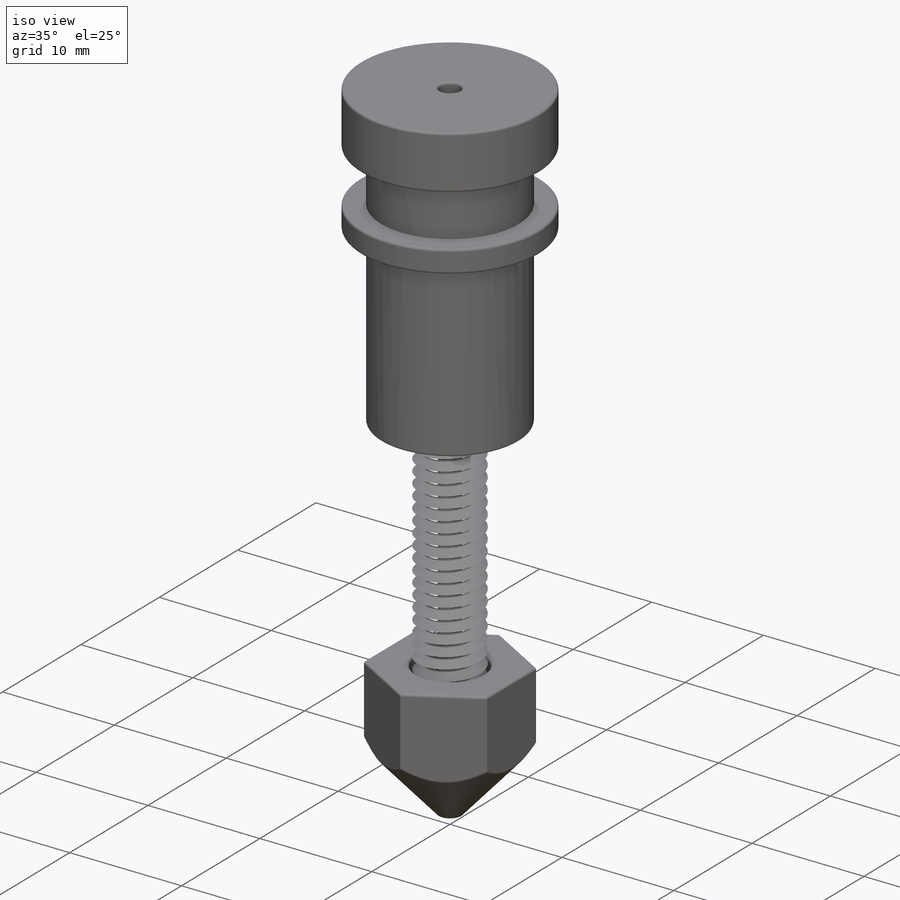
[diagram: iso view]
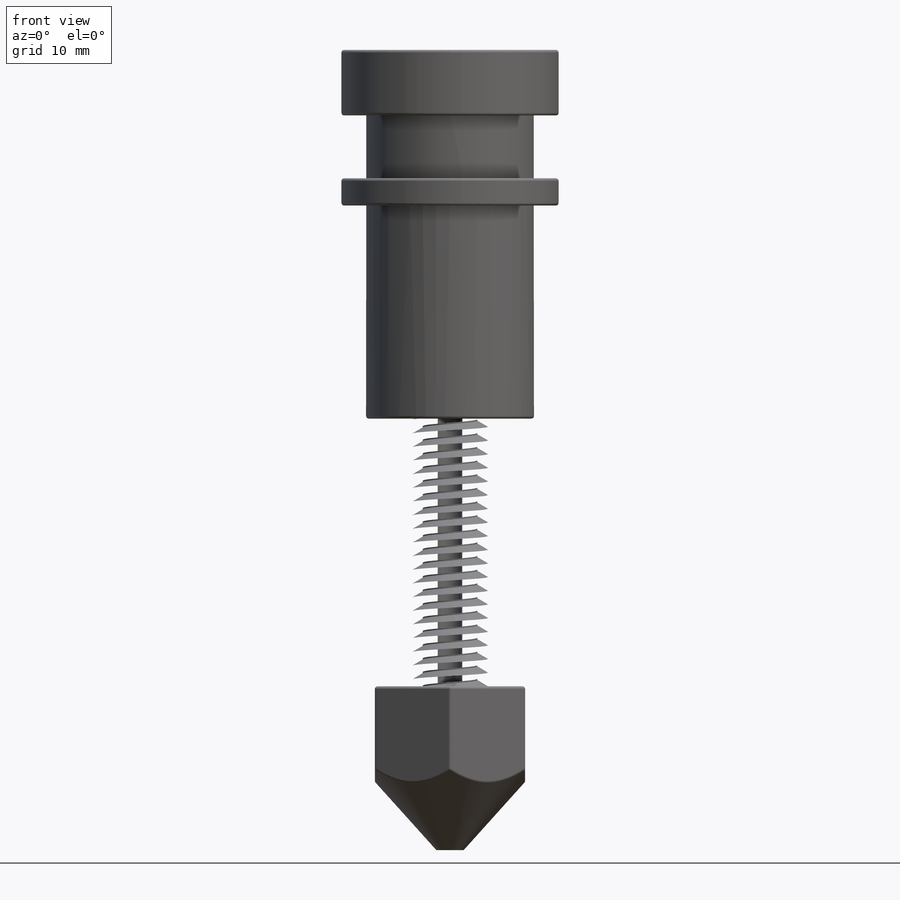
[diagram: front view]
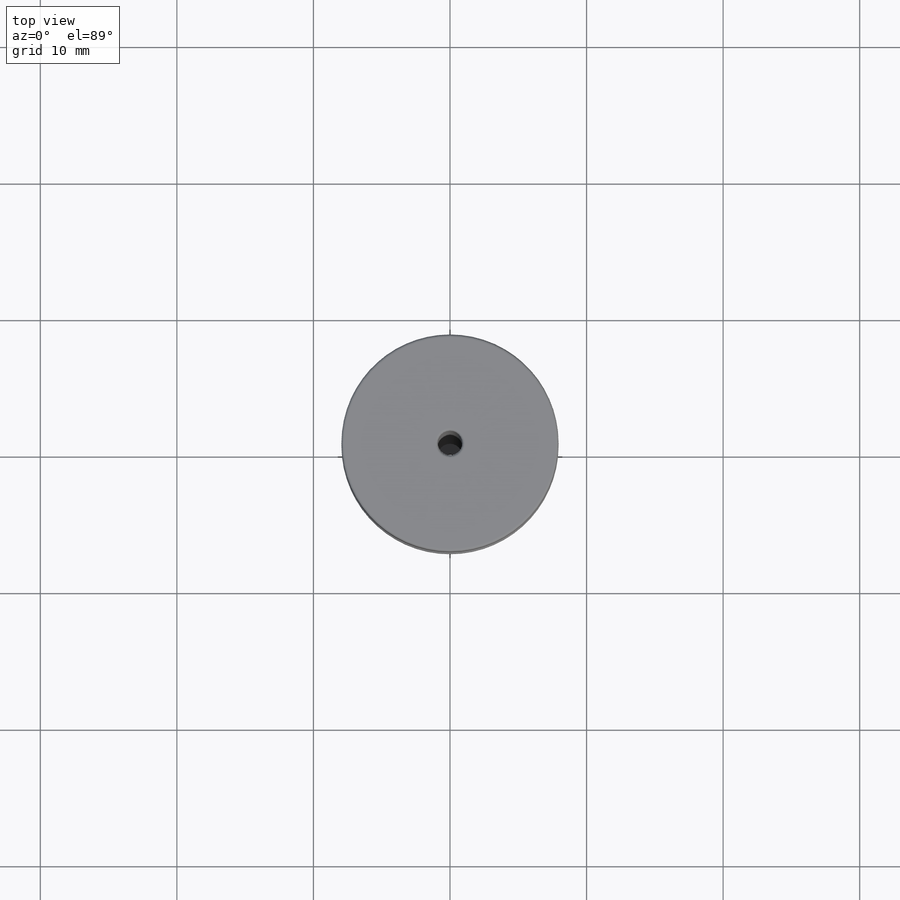
[diagram: top view]
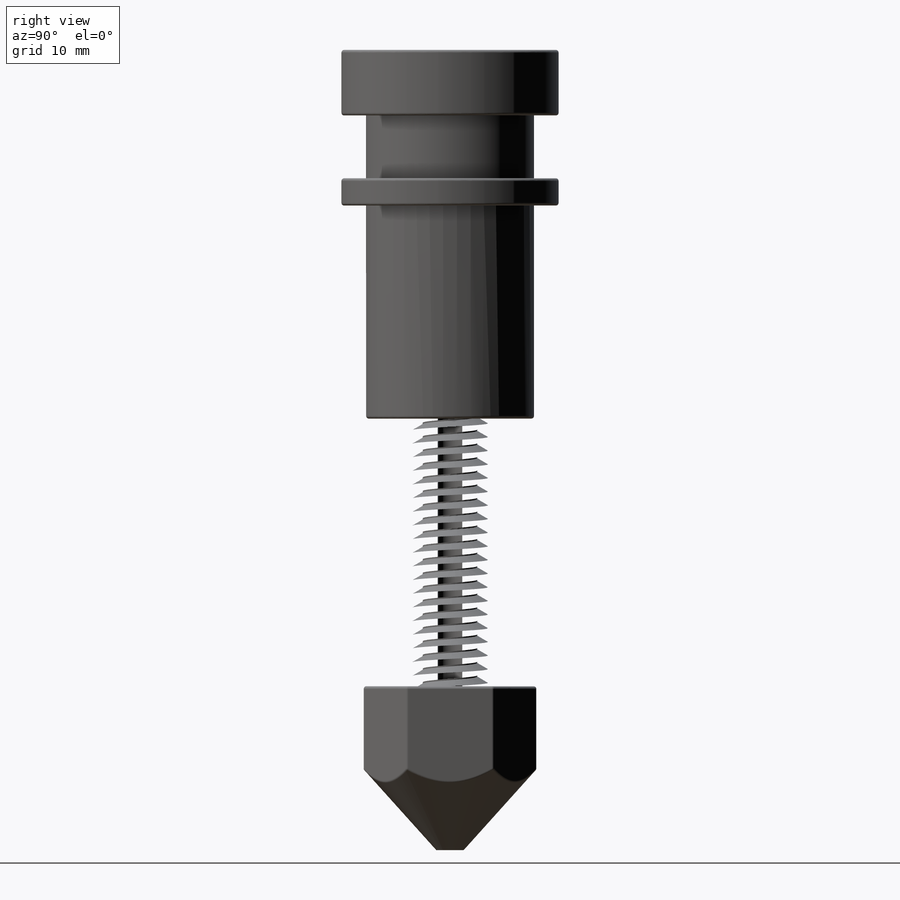
[diagram: right view]
SOLIDWORKS PART (.sldprt)
format: sldprt  version: not decoded by parser v0  size: 1,903,616 bytes
history: native  units: mm
features: sketch x19, cut_extrude x7, fillet x3, plane x3, helix x3, sweep x3, revolve x2, extrude x2, material x1, cut_revolve x1 (+13 scaffold rows collapsed)
feature tree (57):
  scaffold x13  (default folders/planes/origin — collapsed)
  material  "Material <not specified>"
  sketch  "Sketch2"  dims[D1=4.8mm D2=4.6mm D3=2.0mm D4=15.6mm D5=15.9mm D6=12.3mm]
  revolve  "Revolve1"  Angle=360deg
  sketch  "Sketch17"  dims[D1=1.8mm]
  cut_extrude  "Cut-Extrude5"  [1 undecoded]
  sketch  "Sketch18"  dims[D1=6.0mm]
  cut_extrude  "Cut-Extrude6"  Depth=10mm
  fillet  "Fillet1"  Radius=0.2mm
  plane  "Plane1"  Offset=10mm
  sketch  "Sketch19"  dims[c1.D3=1.8mm c1.D1=18.36mm c1.D2=19.15mm c2.D3=12.0mm]
  extrude  "Boss-Extrude3"  Depth=9.6mm
  sketch  "Sketch21"  dims[c1.D1=~4.22533mm c1.D2=5.0mm c1.D3=2.0mm c2.D1=5.25mm]
  cut_extrude  "Cut-Extrude7"  Depth=9.6mm
  sketch  "Sketch22"  dims[D1=2.0mm]
  cut_extrude  "Cut-Extrude8"  [1 undecoded]
  sketch  "Sketch32"
  helix  "Helix/Spiral3"  Pitch=4mm
  sketch  "Sketch33"
  plane  "Plane2"
  sketch  "Sketch34"  dims[c1.D1=0.04mm c1.D2=0.04mm c1.D3=0.4mm c1.D4=0.3mm c2.D4=30.0deg]
  sweep  "Cut-Sweep3"
  sketch  "Sketch35"
  helix  "Helix/Spiral4"  Pitch=20.6mm
  plane  "Plane3"
  sketch  "Sketch36"  dims[c1.D1=0.04mm c1.D2=0.04mm c1.D3=~0.57511mm c2.D3=30.0deg c2.D4=0.4mm c2.D1=0.04mm c2.D2=0.04mm c3.D3=~0.44553mm c4.D3=30.0deg c4.D4=0.4mm]
  sweep  "Cut-Sweep4"
  fillet  "Fillet2"  Radius=0.2mm
  sketch  "Sketch23"  dims[D1=11.0mm]
  extrude  "Boss-Extrude5"  Depth=12mm
  sketch  "Sketch24"  dims[c1.D1=7.0mm c1.D2=2.0mm c1.D3=~0.434455mm c2.D1=2.0mm c2.D2=7.0mm]
  cut_revolve  "Cut-Revolve4"  Angle=360deg
  sketch  "Sketch25"  dims[D1=0.35mm]
  cut_extrude  "Cut-Extrude9"  [1 undecoded]
  sketch  "Sketch26"
  cut_extrude  "Cut-Extrude10"  Depth=8mm
  fillet  "Fillet3"  Radius=0.2mm
  sketch  "Sketch27"
  revolve  "Revolve3"  Angle=360deg
  sketch  "Sketch29"
  helix  "Helix/Spiral2"  Pitch=39.5mm
  sketch  "Sketch31"
  cut_extrude  "Cut-Extrude11"  [1 undecoded]
  sketch  "Sketch30"  dims[c1.D1=~1.306415mm c2.D1=30.0deg c2.D2=1.0mm c2.D3=0.1mm c3.D1=0.1mm c3.D4=0.9mm c4.D4=30.0deg]
  sweep  "Cut-Sweep2"
decode coverage: 26 of 40 modeling features carry decoded parameters
note: ~ marks probable driven/reference dimensions
note: 4 parameter values undecoded
summary: no parameter record found for 4 features
note: suppression state not decoded; provenance and decode notes live in map.json
